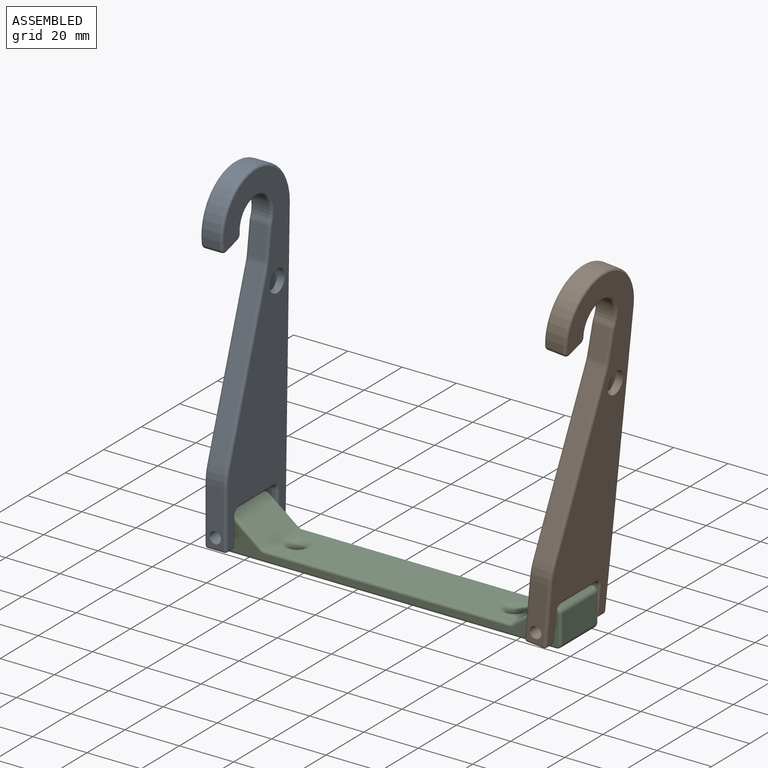
[diagram: assembled view]
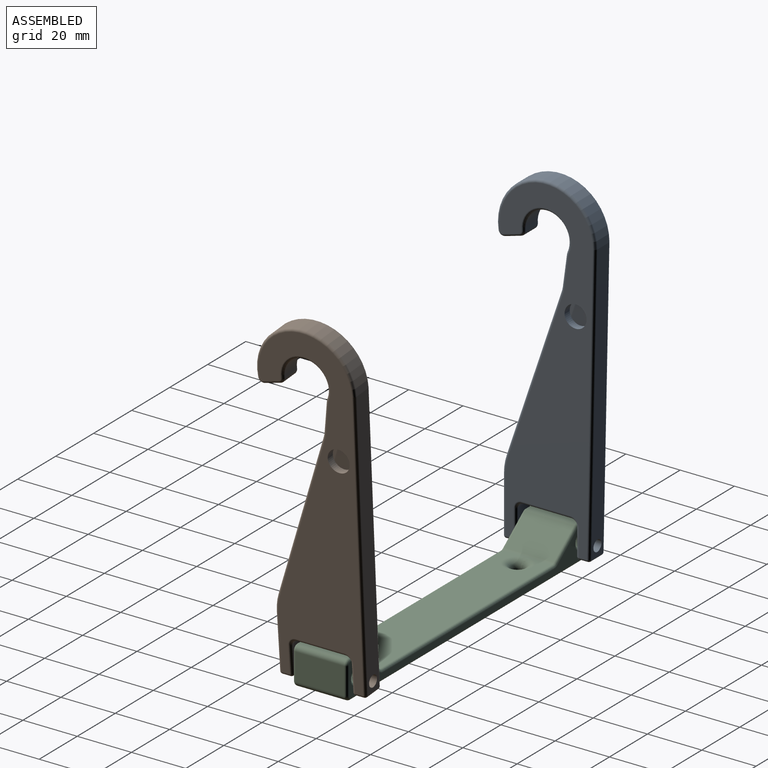
[diagram: assembled view, second angle]
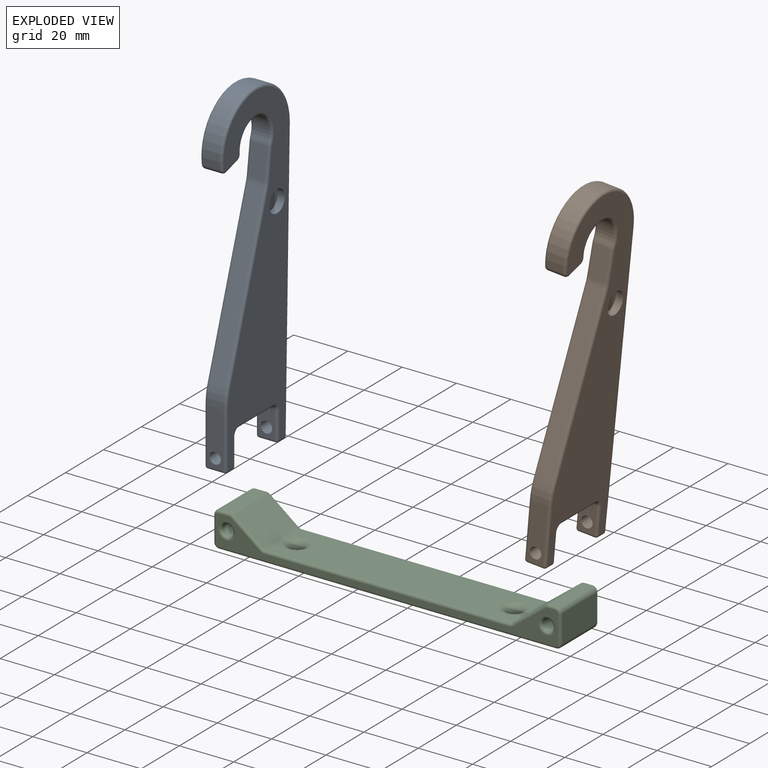
[diagram: exploded view]
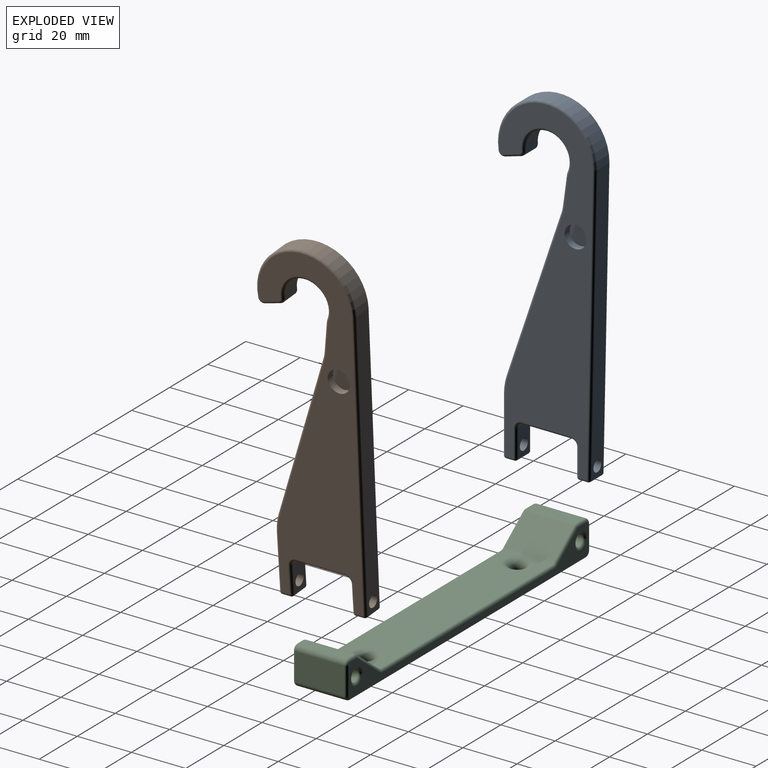
[diagram: exploded view, second angle]
ASSEMBLY  parts=3 mates=2
PART A: 75 faces, bbox 124.5x39.4x8 mm
  f0: plane 103.82x6mm, normal (0.02,1,0), area 609.2mm2, adj f1,f21,f24,f25,f26
  f1: cylinder r=18.2mm len=36.4mm, axis (0,0,-1), area 360.3mm2, adj f0,f2,f23,f27
  f2: cylinder r=2mm len=6mm, axis (0,0,-1), area 20.3mm2, adj f1,f3,f28,f31
  f3: plane 6x5.84mm, normal (0.96,0.28,0), area 36.4mm2, adj f2,f4,f32,f36
  f4: cylinder r=2mm len=6mm, axis (0,0,-1), area 16.5mm2, adj f3,f5,f37,f40
  f5: cylinder r=8.2mm len=16.4mm, axis (0,0,-1), area 178.6mm2, adj f4,f6,f41,f44
  f6: cylinder r=5mm len=6mm, axis (0,0,-1), area 8.1mm2, adj f5,f7,f45,f48
  f7: plane 10.83x6mm, normal (-0.13,-0.99,0), area 65.5mm2, adj f6,f8,f49,f52
  f8: cylinder r=10mm len=6mm, axis (0,0,-1), area 11.5mm2, adj f7,f9,f53,f56
  f9: plane 59.71x20.22mm, normal (-0.32,-0.95,0), area 378.2mm2, adj f8,f10,f57,f61
  f10: cylinder r=20mm len=6.42mm, axis (0,0,-1), area 39.2mm2, adj f9,f11,f62,f65
  f11: plane 20.47x6mm, normal (0,-1,0), area 109mm2, adj f10,f22,f66,f69,f72
  f12: plane 6x3mm, normal (1,0,0), area 18mm2, adj f59,f67,f68,f72
  f13: plane 10x6mm, normal (0,1,0), area 46.1mm2, adj f14,f22,f58,f59,f60
  f14: cylinder r=2mm len=6mm, axis (0,0,-1), area 18.8mm2, adj f13,f15,f54,f55
  f15: plane 18x6mm, normal (1,0,0), area 108mm2, adj f14,f16,f50,f51
  f16: cylinder r=2mm len=6mm, axis (0,0,-1), area 18.8mm2, adj f15,f17,f46,f47
  f17: plane 10x6mm, normal (0,-1,0), area 46.1mm2, adj f16,f21,f34,f42,f43
  f18: plane 6x3.02mm, normal (1,0,0), area 18.1mm2, adj f25,f33,f34,f35
  f19: plane 121x34.4mm, normal (0,0,1), area 2159mm2, adj f23,f24,f28,f32,f33,f37,f41,f42
  f20: plane 121x34.4mm, normal (0,0,-1), area 2210.5mm2, adj f26,f27,f31,f35,f36,f40,f43,f44
  f21: cylinder r=2.1mm len=5.14mm, axis (0,-1,0), area 67.2mm2, adj f0,f17
  f22: cylinder r=2.1mm len=5mm, axis (0,-1,0), area 66mm2, adj f11,f13
  f23: torus R=17.2mm, axis (0,0,1), area 92.4mm2, adj f1,f19,f24,f28
  f24: cylinder r=1mm len=103.84mm, axis (1,-0.02,0), area 163.1mm2, adj f0,f19,f23,f29
  f25: cylinder r=1mm len=6mm, axis (0,0,-1), area 9.3mm2, adj f0,f18,f29,f30
  f26: cylinder r=1mm len=103.84mm, axis (-1,0.02,0), area 163.1mm2, adj f0,f20,f27,f30
  f27: torus R=17.2mm, axis (0,0,1), area 92.4mm2, adj f1,f20,f26,f31
  f28: torus R=1mm, axis (0,0,1), area 4.4mm2, adj f2,f19,f23,f32
  f29: sphere r=1mm, area 1.5mm2, adj f24,f25,f33
  f30: sphere r=1mm, area 1.5mm2, adj f25,f26,f35
  f31: torus R=1mm, axis (0,0,1), area 4.4mm2, adj f2,f20,f27,f36
  f32: cylinder r=1mm len=6.11mm, axis (0.28,-0.96,0), area 9.5mm2, adj f3,f19,f28,f37
  f33: cylinder r=1mm len=3.02mm, axis (0,-1,0), area 4.7mm2, adj f18,f19,f29,f38
  f34: cylinder r=1mm len=6mm, axis (0,0,-1), area 9.4mm2, adj f17,f18,f38,f39
  f35: cylinder r=1mm len=3.02mm, axis (0,1,0), area 4.7mm2, adj f18,f20,f30,f39
  f36: cylinder r=1mm len=6.11mm, axis (-0.28,0.96,0), area 9.5mm2, adj f3,f20,f31,f40
  f37: torus R=1mm, axis (0,0,1), area 3.5mm2, adj f4,f19,f32,f41
  f38: sphere r=1mm, area 1.6mm2, adj f33,f34,f42
  f39: sphere r=1mm, area 1.6mm2, adj f34,f35,f43
  f40: torus R=1mm, axis (0,0,1), area 3.5mm2, adj f4,f20,f36,f44
  f41: torus R=9.2mm, axis (0,0,1), area 48.8mm2, adj f5,f19,f37,f45
  f42: cylinder r=1mm len=10mm, axis (-1,0,0), area 15.7mm2, adj f17,f19,f38,f46
  f43: cylinder r=1mm len=10mm, axis (1,0,0), area 15.7mm2, adj f17,f20,f39,f47
  f44: torus R=9.2mm, axis (0,0,1), area 48.8mm2, adj f5,f20,f40,f48
  f45: torus R=4mm, axis (0,0,1), area 2mm2, adj f6,f19,f41,f49
  f46: torus R=3mm, axis (0,0,1), area 5.8mm2, adj f16,f19,f42,f50
  f47: torus R=3mm, axis (0,0,1), area 5.8mm2, adj f16,f20,f43,f51
  f48: torus R=4mm, axis (0,0,1), area 2mm2, adj f6,f20,f44,f52
  f49: cylinder r=1mm len=10.96mm, axis (-0.99,0.13,0), area 17.2mm2, adj f7,f19,f45,f53
  f50: cylinder r=1mm len=18mm, axis (0,-1,0), area 28.3mm2, adj f15,f19,f46,f54
  f51: cylinder r=1mm len=18mm, axis (0,1,0), area 28.3mm2, adj f15,f20,f47,f55
  f52: cylinder r=1mm len=10.96mm, axis (0.99,-0.13,0), area 17.2mm2, adj f7,f20,f48,f56
  f53: torus R=11mm, axis (0,0,1), area 3.1mm2, adj f8,f19,f49,f57
  f54: torus R=3mm, axis (0,0,1), area 5.8mm2, adj f14,f19,f50,f58
  f55: torus R=3mm, axis (0,0,1), area 5.8mm2, adj f14,f20,f51,f60
  f56: torus R=11mm, axis (0,0,1), area 3.1mm2, adj f8,f20,f52,f61
  f57: cylinder r=1mm len=60.03mm, axis (-0.95,0.32,0), area 99mm2, adj f9,f19,f53,f62
  f58: cylinder r=1mm len=10mm, axis (1,0,0), area 15.7mm2, adj f13,f19,f54,f63
  f59: cylinder r=1mm len=6mm, axis (0,0,-1), area 9.4mm2, adj f12,f13,f63,f64
  f60: cylinder r=1mm len=10mm, axis (-1,0,0), area 15.7mm2, adj f13,f20,f55,f64
  f61: cylinder r=1mm len=60.03mm, axis (0.95,-0.32,0), area 99mm2, adj f9,f20,f56,f65
  f62: torus R=19mm, axis (0,0,1), area 10.1mm2, adj f10,f19,f57,f66
  f63: sphere r=1mm, area 1.6mm2, adj f58,f59,f67
  f64: sphere r=1mm, area 1.6mm2, adj f59,f60,f68
  f65: torus R=19mm, axis (0,0,1), area 10.1mm2, adj f10,f20,f61,f69
  f66: cylinder r=1mm len=20.47mm, axis (-1,0,0), area 32.2mm2, adj f11,f19,f62,f70
  f67: cylinder r=1mm len=3mm, axis (0,-1,0), area 4.7mm2, adj f12,f19,f63,f70
  f68: cylinder r=1mm len=3mm, axis (0,1,0), area 4.7mm2, adj f12,f20,f64,f71
  f69: cylinder r=1mm len=20.47mm, axis (1,0,0), area 32.2mm2, adj f11,f20,f65,f71
  f70: sphere r=1mm, area 1.6mm2, adj f66,f67,f72
  f71: sphere r=1mm, area 1.6mm2, adj f68,f69,f72
  f72: cylinder r=1mm len=6mm, axis (0,0,1), area 9.4mm2, adj f11,f12,f70,f71
  f73: cylinder r=4.05mm len=8.1mm, axis (0,0,1), area 68.7mm2, adj f19,f74
  f74: plane 8.1x8.1mm, normal (0,0,1), area 51.5mm2, adj f73
PART B: same geometry as A
PART C: 62 faces, bbox 128.3x20x15.3 mm
  f0: cylinder r=2mm len=18mm, axis (0,1,0), area 23.7mm2, adj f1,f16,f25,f41,f59
  f1: plane 18x10.55mm, normal (0.61,0,0.79), area 240.2mm2, adj f0,f2,f39,f57
  f2: cylinder r=2mm len=18mm, axis (0,1,0), area 24mm2, adj f1,f3,f37,f55
  f3: plane 18x4mm, normal (-0.01,0,1), area 72mm2, adj f2,f4,f35,f53
  f4: cylinder r=2mm len=18mm, axis (0,1,0), area 56.3mm2, adj f3,f5,f33,f51
  f5: plane 18x8.98mm, normal (-1,0,0), area 161.6mm2, adj f4,f6,f31,f49
  f6: cylinder r=2mm len=18mm, axis (0,1,0), area 56.5mm2, adj f5,f7,f29,f47
  f7: plane 124x18mm, normal (0,0,-1), area 2204.3mm2, adj f6,f8,f20,f21,f27,f45
  f8: cylinder r=2mm len=18mm, axis (0,1,0), area 56.5mm2, adj f7,f9,f28,f46
  f9: plane 18x10mm, normal (1,0,0), area 180mm2, adj f8,f10,f30,f48
  f10: cylinder r=2mm len=18mm, axis (0,1,0), area 56.5mm2, adj f9,f11,f32,f50
  f11: plane 18x2.72mm, normal (0,0,1), area 49mm2, adj f10,f12,f34,f52
  f12: cylinder r=2mm len=18mm, axis (0,1,0), area 23.7mm2, adj f11,f13,f36,f54
  f13: plane 18x11.83mm, normal (-0.61,0,0.79), area 269.3mm2, adj f12,f14,f38,f56
  f14: cylinder r=2mm len=18mm, axis (0,1,0), area 23.7mm2, adj f13,f16,f23,f40,f58
  f15: cylinder r=2.15mm len=18mm, axis (0,1,0), area 243.2mm2, adj f26,f44
  f16: plane 90x18mm, normal (0,0,1), area 1456.8mm2, adj f0,f14,f22,f24,f42,f60
  f17: cylinder r=2.15mm len=18mm, axis (0,1,0), area 243.2mm2, adj f43,f61
  f18: plane 126x12mm, normal (0,-1,0), area 394.6mm2, adj f44,f45,f46,f47,f48,f49,f50,f51
  f19: plane 126x12mm, normal (0,1,0), area 394.6mm2, adj f26,f27,f28,f29,f30,f31,f32,f33
  f20: cylinder r=2.1mm len=4.2mm, axis (0,0,1), area 13.2mm2, adj f7,f22,f23
  f21: cylinder r=2.1mm len=4.2mm, axis (0,0,1), area 13.2mm2, adj f7,f24,f25
  f22: torus R=5.1mm, axis (0,0,-1), area 88.5mm2, adj f16,f20,f23
  f23: bspline ~4.11x3.18mm, area 5.9mm2, adj f14,f20,f22
  f24: torus R=5.1mm, axis (0,0,-1), area 88.5mm2, adj f16,f21,f25
  f25: bspline ~4.11x3.18mm, area 5.9mm2, adj f0,f21,f24
  f26: torus R=3.15mm, axis (0,-1,0), area 24.8mm2, adj f15,f19
  f27: cylinder r=1mm len=124mm, axis (1,0,0), area 194.8mm2, adj f7,f19,f28,f29
  f28: torus R=1mm, axis (0,-1,0), area 4mm2, adj f8,f19,f27,f30
  f29: torus R=1mm, axis (0,-1,0), area 4mm2, adj f6,f19,f27,f31
  f30: cylinder r=1mm len=10mm, axis (0,0,1), area 15.7mm2, adj f9,f19,f28,f32
  f31: cylinder r=1mm len=8.98mm, axis (0,0,-1), area 14.1mm2, adj f5,f19,f29,f33
  f32: torus R=1mm, axis (0,-1,0), area 4mm2, adj f10,f19,f30,f34
  f33: torus R=1mm, axis (0,-1,0), area 4mm2, adj f4,f19,f31,f35
  f34: cylinder r=1mm len=2.72mm, axis (-1,0,0), area 4.3mm2, adj f11,f19,f32,f36
  f35: cylinder r=1mm len=4.01mm, axis (-1,0,-0.01), area 6.3mm2, adj f3,f19,f33,f37
  f36: torus R=1mm, axis (0,-1,0), area 1.7mm2, adj f12,f19,f34,f38
  f37: torus R=1mm, axis (0,-1,0), area 1.7mm2, adj f2,f19,f35,f39
  f38: cylinder r=1mm len=12.44mm, axis (-0.79,0,-0.61), area 23.5mm2, adj f13,f19,f36,f40
  f39: cylinder r=1mm len=11.16mm, axis (-0.79,0,0.61), area 21mm2, adj f1,f19,f37,f41
  f40: torus R=3mm, axis (0,-1,0), area 2.4mm2, adj f14,f19,f38,f42
  f41: torus R=3mm, axis (0,-1,0), area 2.4mm2, adj f0,f19,f39,f42
  f42: cylinder r=1mm len=90mm, axis (-1,0,0), area 141.4mm2, adj f16,f19,f40,f41
  f43: torus R=3.15mm, axis (0,-1,0), area 24.8mm2, adj f17,f19
  f44: torus R=3.15mm, axis (0,-1,0), area 24.8mm2, adj f15,f18
  f45: cylinder r=1mm len=124mm, axis (-1,0,0), area 194.8mm2, adj f7,f18,f46,f47
  f46: torus R=1mm, axis (0,-1,0), area 4mm2, adj f8,f18,f45,f48
  f47: torus R=1mm, axis (0,-1,0), area 4mm2, adj f6,f18,f45,f49
  f48: cylinder r=1mm len=10mm, axis (0,0,-1), area 15.7mm2, adj f9,f18,f46,f50
  f49: cylinder r=1mm len=8.98mm, axis (0,0,1), area 14.1mm2, adj f5,f18,f47,f51
  f50: torus R=1mm, axis (0,-1,0), area 4mm2, adj f10,f18,f48,f52
  f51: torus R=1mm, axis (0,-1,0), area 4mm2, adj f4,f18,f49,f53
  f52: cylinder r=1mm len=2.72mm, axis (1,0,0), area 4.3mm2, adj f11,f18,f50,f54
  f53: cylinder r=1mm len=4.01mm, axis (1,0,0.01), area 6.3mm2, adj f3,f18,f51,f55
  f54: torus R=1mm, axis (0,-1,0), area 1.7mm2, adj f12,f18,f52,f56
  f55: torus R=1mm, axis (0,-1,0), area 1.7mm2, adj f2,f18,f53,f57
  f56: cylinder r=1mm len=12.44mm, axis (0.79,0,0.61), area 23.5mm2, adj f13,f18,f54,f58
  f57: cylinder r=1mm len=11.16mm, axis (0.79,0,-0.61), area 21mm2, adj f1,f18,f55,f59
  f58: torus R=3mm, axis (0,-1,0), area 2.4mm2, adj f14,f18,f56,f60
  f59: torus R=3mm, axis (0,-1,0), area 2.4mm2, adj f0,f18,f57,f60
  f60: cylinder r=1mm len=90mm, axis (1,0,0), area 141.4mm2, adj f16,f18,f58,f59
  f61: torus R=3.15mm, axis (0,-1,0), area 24.8mm2, adj f17,f18
PLACE A rot(axis=(0,1,0),90deg) t=(-48.19,-5.22,-24.99)mm
PLACE B rot(axis=(0,1,0),95deg) t=(64.86,-5.22,-24.43)mm
PLACE C t=(14.81,-3.46,-8.27)mm fixed
MATE revolute A.f21 <-> C.f17  axis (0,-1,0) through (-44.19,-2.46,32.51)mm
MATE revolute B.f21 <-> C.f15  axis (0,1,0) through (73.81,-24.46,32.51)mm
